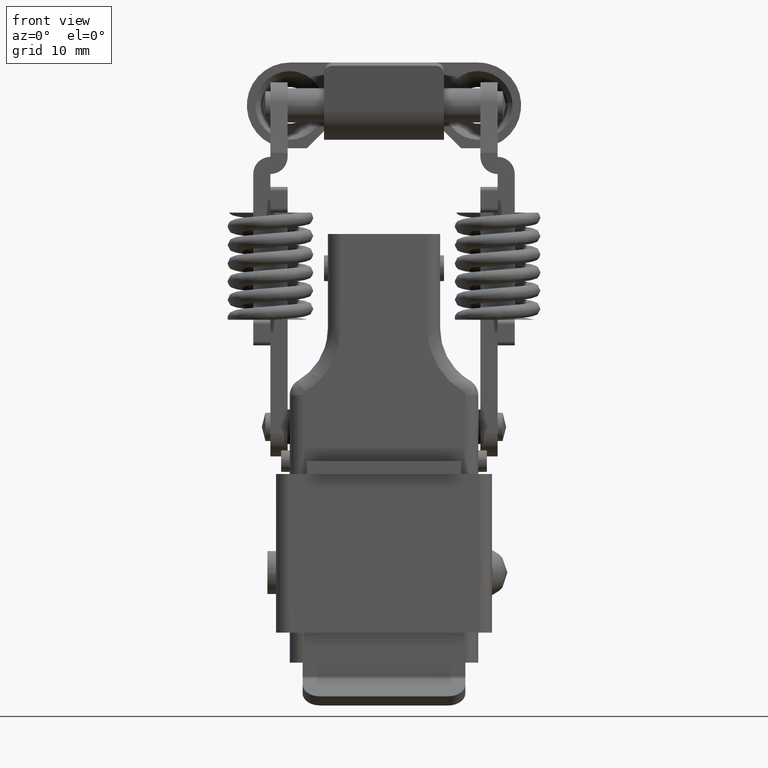
[diagram: clean part render]
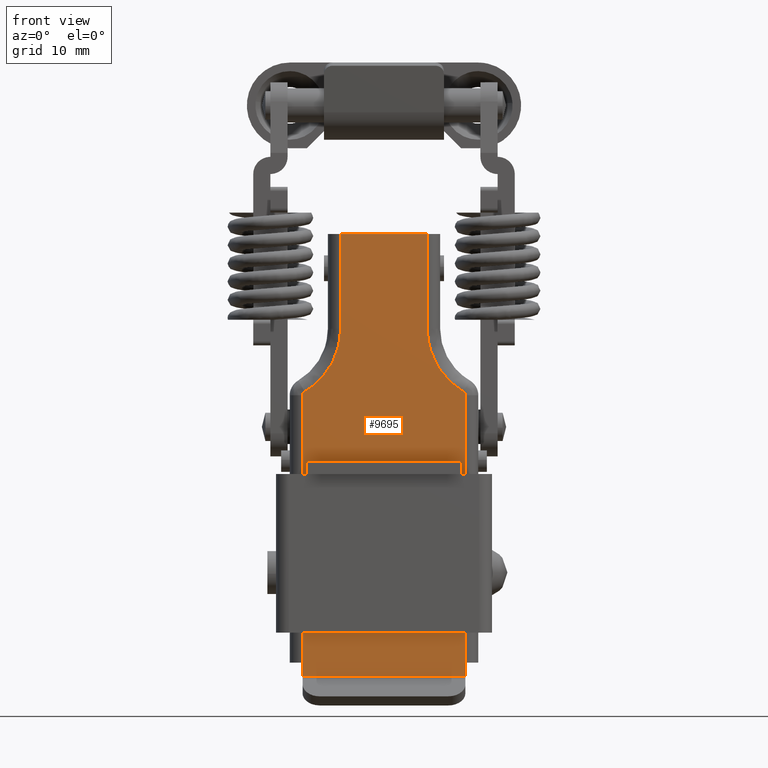
[diagram: same view with one face highlighted and labeled with its STEP entity id]
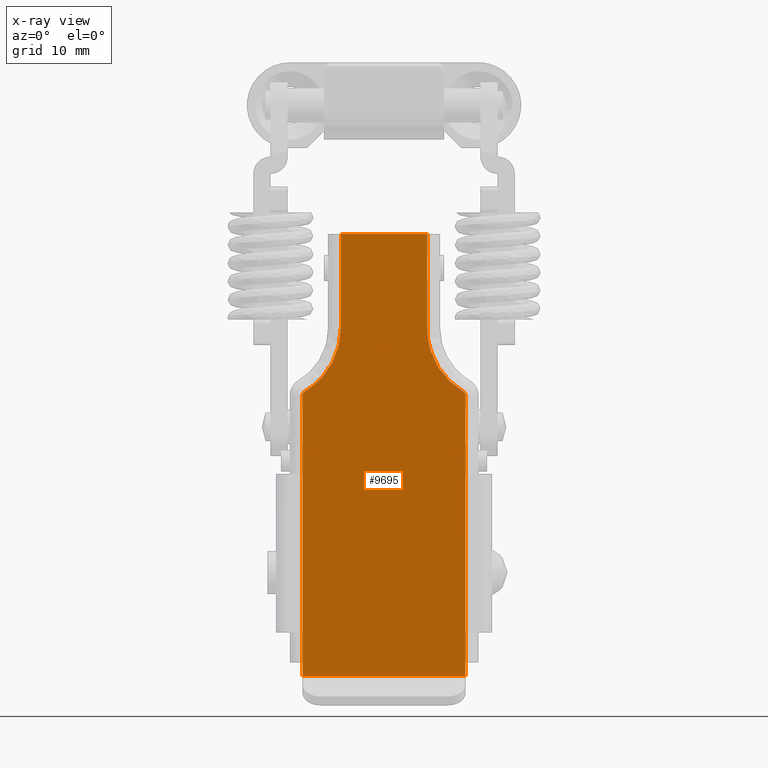
[diagram: x-ray of the same camera — body ghosted, the highlighted face saturated]
A machine part, front view. The second image highlights one B-rep face of the part: STEP entity #9695.
The next image is the same camera in x-ray: the body ghosted, the highlighted face saturated — about 0% of this face is hidden behind the body in this view.
In plain terms, the highlighted face is a freeform B-spline surface patch.
Its self-contained STEP definition (entity closure, byte-faithful):
#7110=CARTESIAN_POINT('',(-9.0,-9.500000000000171,-66.592893287267600));
#7111=VERTEX_POINT('',#7110);
#7127=CARTESIAN_POINT('',(-9.0,9.499999999999840,-66.592893287267600));
#7128=VERTEX_POINT('',#7127);
#7129=CARTESIAN_POINT('',(-9.0,9.499999999999840,-66.592893287267600));
#7130=CARTESIAN_POINT('',(-9.0,-9.500000000000171,-66.592893287267600));
#7131=QUASI_UNIFORM_CURVE('',1,(#7129,#7130),.UNSPECIFIED.,.F.,.U.);
#7132=EDGE_CURVE('',#7128,#7111,#7131,.T.);
#8781=CARTESIAN_POINT('',(-9.0,9.499999999999840,-65.0));
#8782=VERTEX_POINT('',#8781);
#8800=CARTESIAN_POINT('',(-9.0,9.499999999999890,-33.818503999999997));
#8801=VERTEX_POINT('',#8800);
#8802=CARTESIAN_POINT('',(-9.0,9.499999999999890,-33.818503999999997));
#8803=CARTESIAN_POINT('',(-9.0,9.499999999999840,-65.0));
#8804=QUASI_UNIFORM_CURVE('',1,(#8802,#8803),.UNSPECIFIED.,.F.,.U.);
#8805=EDGE_CURVE('',#8801,#8782,#8804,.T.);
#8863=CARTESIAN_POINT('',(-9.0,9.252777998103191,-33.387106591199299));
#8864=VERTEX_POINT('',#8863);
#8894=CARTESIAN_POINT('',(-9.0,9.252777998103191,-33.387106591199299));
#8895=CARTESIAN_POINT('',(-9.0,9.499999999999890,-33.531967227295610));
#8896=CARTESIAN_POINT('',(-9.0,9.499999999999890,-33.818503999999997));
#8904=(BOUNDED_CURVE()B_SPLINE_CURVE(2,(#8894,#8895,#8896),.UNSPECIFIED.,.F.,.U.)CURVE()GEOMETRIC_REPRESENTATION_ITEM()QUASI_UNIFORM_CURVE()RATIONAL_B_SPLINE_CURVE((1.0,0.867627670912377,1.0))REPRESENTATION_ITEM(''));
#8905=EDGE_CURVE('',#8864,#8801,#8904,.T.);
#8927=CARTESIAN_POINT('',(-9.0,5.050000000000000,-26.053357000000101));
#8928=VERTEX_POINT('',#8927);
#8958=CARTESIAN_POINT('',(-9.0,5.049999999999999,-26.053357000000101));
#8959=CARTESIAN_POINT('',(-9.0,5.049999999999999,-30.924482273591000));
#8960=CARTESIAN_POINT('',(-9.0,9.252777998103202,-33.387106591199277));
#8968=(BOUNDED_CURVE()B_SPLINE_CURVE(2,(#8958,#8959,#8960),.UNSPECIFIED.,.F.,.U.)CURVE()GEOMETRIC_REPRESENTATION_ITEM()QUASI_UNIFORM_CURVE()RATIONAL_B_SPLINE_CURVE((1.0,0.867627664852533,1.0))REPRESENTATION_ITEM(''));
#8969=EDGE_CURVE('',#8928,#8864,#8968,.T.);
#8990=CARTESIAN_POINT('',(-9.0,5.050000000000000,-15.0));
#8991=VERTEX_POINT('',#8990);
#9011=CARTESIAN_POINT('',(-9.0,5.050000000000000,-15.0));
#9012=CARTESIAN_POINT('',(-9.0,5.050000000000000,-26.053357000000101));
#9013=QUASI_UNIFORM_CURVE('',1,(#9011,#9012),.UNSPECIFIED.,.F.,.U.);
#9014=EDGE_CURVE('',#8991,#8928,#9013,.T.);
#9052=CARTESIAN_POINT('',(-9.0,-9.500000000000108,-33.818503999999997));
#9053=VERTEX_POINT('',#9052);
#9084=CARTESIAN_POINT('',(-9.0,-9.252777775332950,-33.387106971385087));
#9085=VERTEX_POINT('',#9084);
#9101=CARTESIAN_POINT('',(-9.0,-9.500000000000108,-33.818503999999997));
#9102=CARTESIAN_POINT('',(-9.0,-9.500000000000110,-33.531967227295624));
#9103=CARTESIAN_POINT('',(-9.0,-9.252777775332955,-33.387106971385080));
#9111=(BOUNDED_CURVE()B_SPLINE_CURVE(2,(#9101,#9102,#9103),.UNSPECIFIED.,.F.,.U.)CURVE()GEOMETRIC_REPRESENTATION_ITEM()QUASI_UNIFORM_CURVE()RATIONAL_B_SPLINE_CURVE((1.0,0.867627670912384,1.0))REPRESENTATION_ITEM(''));
#9112=EDGE_CURVE('',#9053,#9085,#9111,.T.);
#9136=CARTESIAN_POINT('',(-9.0,-5.050000000000120,-26.053357000000101));
#9137=VERTEX_POINT('',#9136);
#9151=CARTESIAN_POINT('',(-9.0,-9.252777775332950,-33.387106971385087));
#9152=CARTESIAN_POINT('',(-9.0,-5.050000000000118,-30.924482273591060));
#9153=CARTESIAN_POINT('',(-9.0,-5.050000000000119,-26.053357000000101));
#9161=(BOUNDED_CURVE()B_SPLINE_CURVE(2,(#9151,#9152,#9153),.UNSPECIFIED.,.F.,.U.)CURVE()GEOMETRIC_REPRESENTATION_ITEM()QUASI_UNIFORM_CURVE()RATIONAL_B_SPLINE_CURVE((1.0,0.867627664852530,1.0))REPRESENTATION_ITEM(''));
#9162=EDGE_CURVE('',#9085,#9137,#9161,.T.);
#9197=CARTESIAN_POINT('',(-9.0,-9.500000000000171,-65.0));
#9198=VERTEX_POINT('',#9197);
#9218=CARTESIAN_POINT('',(-9.0,-9.500000000000171,-65.0));
#9219=CARTESIAN_POINT('',(-9.0,-9.500000000000108,-33.818503999999997));
#9220=QUASI_UNIFORM_CURVE('',1,(#9218,#9219),.UNSPECIFIED.,.F.,.U.);
#9221=EDGE_CURVE('',#9198,#9053,#9220,.T.);
#9240=CARTESIAN_POINT('',(-9.0,-5.050000000000130,-15.0));
#9241=VERTEX_POINT('',#9240);
#9257=CARTESIAN_POINT('',(-9.0,-5.050000000000120,-26.053357000000101));
#9258=CARTESIAN_POINT('',(-9.0,-5.050000000000130,-15.0));
#9259=QUASI_UNIFORM_CURVE('',1,(#9257,#9258),.UNSPECIFIED.,.F.,.U.);
#9260=EDGE_CURVE('',#9137,#9241,#9259,.T.);
#9290=CARTESIAN_POINT('',(-9.0,9.499999999999840,-66.592893287267600));
#9291=CARTESIAN_POINT('',(-9.0,9.499999999999840,-65.0));
#9292=QUASI_UNIFORM_CURVE('',1,(#9290,#9291),.UNSPECIFIED.,.F.,.U.);
#9293=EDGE_CURVE('',#7128,#8782,#9292,.T.);
#9370=CARTESIAN_POINT('',(-9.0,-9.500000000000171,-66.592893287267600));
#9371=CARTESIAN_POINT('',(-9.0,-9.500000000000171,-65.0));
#9372=QUASI_UNIFORM_CURVE('',1,(#9370,#9371),.UNSPECIFIED.,.F.,.U.);
#9373=EDGE_CURVE('',#7111,#9198,#9372,.T.);
#9672=CARTESIAN_POINT('',(-9.0,10.449049963174209,-12.422935080298030));
#9673=CARTESIAN_POINT('',(-9.0,-10.449050472794200,-12.422935080298030));
#9674=CARTESIAN_POINT('',(-9.0,10.449049963174209,-69.169959590798811));
#9675=CARTESIAN_POINT('',(-9.0,-10.449050472794200,-69.169959590798811));
#9676=B_SPLINE_SURFACE_WITH_KNOTS('',1,1,((#9672,#9674),(#9673,#9675)),.UNSPECIFIED.,.F.,.F.,.U.,(2,2),(2,2),(0.0,20.898100435968409),(0.0,56.747024510500779),.UNSPECIFIED.);
#9677=ORIENTED_EDGE('',*,*,#9293,.F.);
#9678=ORIENTED_EDGE('',*,*,#7132,.T.);
#9679=ORIENTED_EDGE('',*,*,#9373,.T.);
#9680=ORIENTED_EDGE('',*,*,#9221,.T.);
#9681=ORIENTED_EDGE('',*,*,#9112,.T.);
#9682=ORIENTED_EDGE('',*,*,#9162,.T.);
#9683=ORIENTED_EDGE('',*,*,#9260,.T.);
#9684=CARTESIAN_POINT('',(-9.0,5.050000000000000,-15.0));
#9685=CARTESIAN_POINT('',(-9.0,-5.050000000000130,-15.0));
#9686=QUASI_UNIFORM_CURVE('',1,(#9684,#9685),.UNSPECIFIED.,.F.,.U.);
#9687=EDGE_CURVE('',#8991,#9241,#9686,.T.);
#9688=ORIENTED_EDGE('',*,*,#9687,.F.);
#9689=ORIENTED_EDGE('',*,*,#9014,.T.);
#9690=ORIENTED_EDGE('',*,*,#8969,.T.);
#9691=ORIENTED_EDGE('',*,*,#8905,.T.);
#9692=ORIENTED_EDGE('',*,*,#8805,.T.);
#9693=EDGE_LOOP('',(#9677,#9678,#9679,#9680,#9681,#9682,#9683,#9688,#9689,#9690,#9691,#9692));
#9694=FACE_OUTER_BOUND('',#9693,.T.);
#9695=ADVANCED_FACE('',(#9694),#9676,.F.);